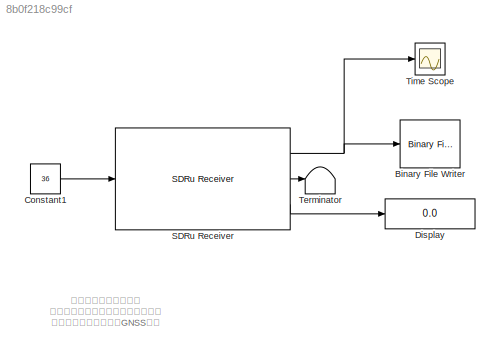
MODEL slx_8b0f218c99cf
KIND model
CONFIG AbsTol = auto
CONFIG EnableMultiTasking = off
CONFIG FixedStep = auto
CONFIG MaxStep = auto
CONFIG MinStep = auto
CONFIG RelTol = 1e-3
CONFIG SampleTimeConstraint = Unconstrained
CONFIG Solver = FixedStepAuto
CONFIG SolverName = FixedStepAuto
CONFIG StartFcn = tc = clock; %当前时间\ntime_str = sprintf('%d%02d%02d_%02d%02d%02d', tc(1),tc(2),tc(3),tc(4),tc(5),floor(tc(6)));
CONFIG StartTime = 0.0
CONFIG StopFcn = system(['ren B210_data.dat B210_',time_str,'_ch1.dat'])\nclearvars tc time_str
CONFIG StopTime = 2
BLOCK [Reference] Binary File Writer  REF=dspsnks4/Binary File Writer
  Ports = [1]
  SourceBlock = dspsnks4/Binary File Writer
  SourceProductBaseCode = DS
  SourceType = dsp.BinaryFileWriter
BLOCK [Constant] Constant1
  Value = 36
BLOCK [Display] Display
  Decimation = 1
  Ports = [1]
BLOCK [Reference] SDRu Receiver  REF=commsdrhw_v2/SDRu Receiver
  Ports = [1, 3]
  SourceBlock = commsdrhw_v2/SDRu Receiver
  SourceProductBaseCode = USRP
  SourceType = SDRu Receiver
BLOCK [Terminator] Terminator
BLOCK [Scope] Time Scope
  DefaultConfigurationName = spbscopes.TimeScopeBlockCfg
  Floating = off
  NumInputPorts = 1
  Ports = [1]
  ScopeSpecificationString = spbscopes.TimeScopeBlockCfg('CurrentConfiguration', extmgr.ConfigurationSet(extmgr.Configuration('Core','General UI',true),extmgr.Configuration('Core','Source UI',true),extmgr.Configuration('Sources','WiredSimulink',true),extmgr.Configuration('Visuals','Time Domain',true,'DisplayPropertyDefaults',struct('MinYLimReal','-962.5','MaxYLimReal','1072.5','YLabelReal','Amplitude','MinYLimMag',' 0.00000',...<+1376ch>
  UserDataPersistent = on
ANNOTATION (root): 突发模式，只突发一次 数据存储在当前文件夹，以时间命名 此程序用来存储一小段GNSS数据
LINE Constant1:1 -> SDRu Receiver:1
NET SDRu Receiver:1 -> Binary File Writer:1, Time Scope:1
LINE SDRu Receiver:2 -> Terminator:1
LINE SDRu Receiver:3 -> Display:1
note: NET lines group one-source signal fan-out (src -> all destinations, sorted); 1:1 wires keep LINE
